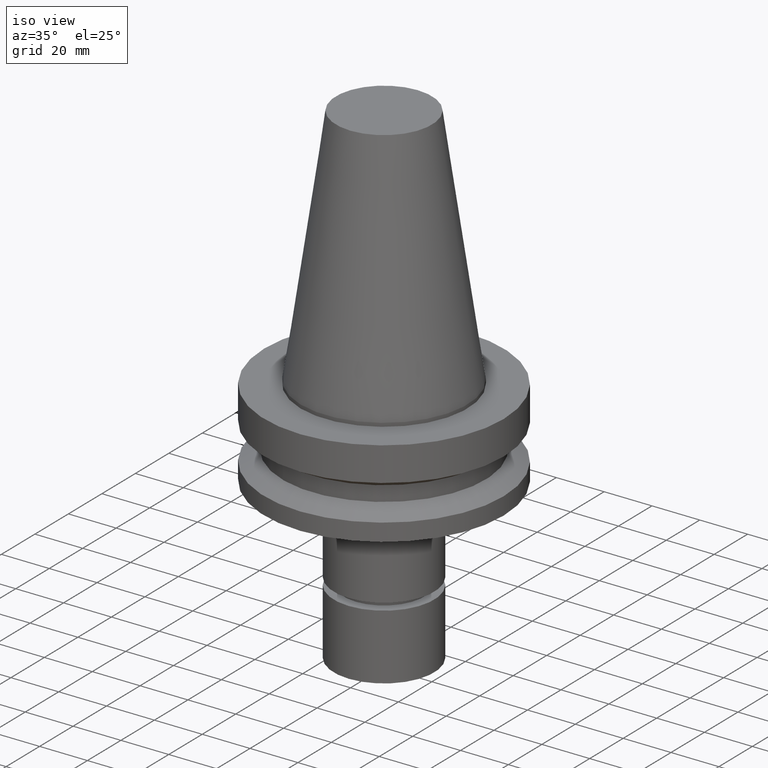
[diagram: clean part render]
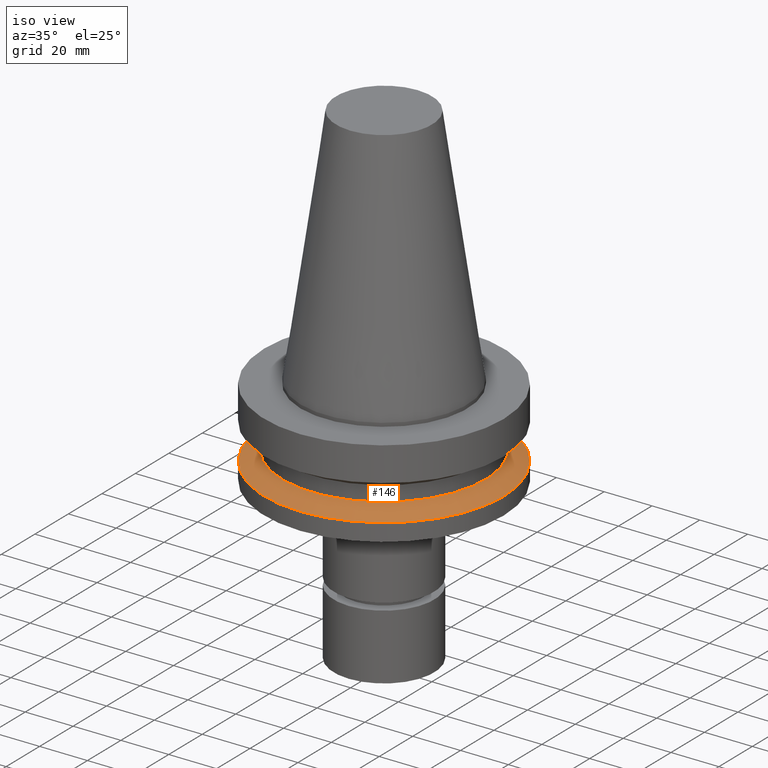
[diagram: same view with one face highlighted and labeled with its STEP entity id]
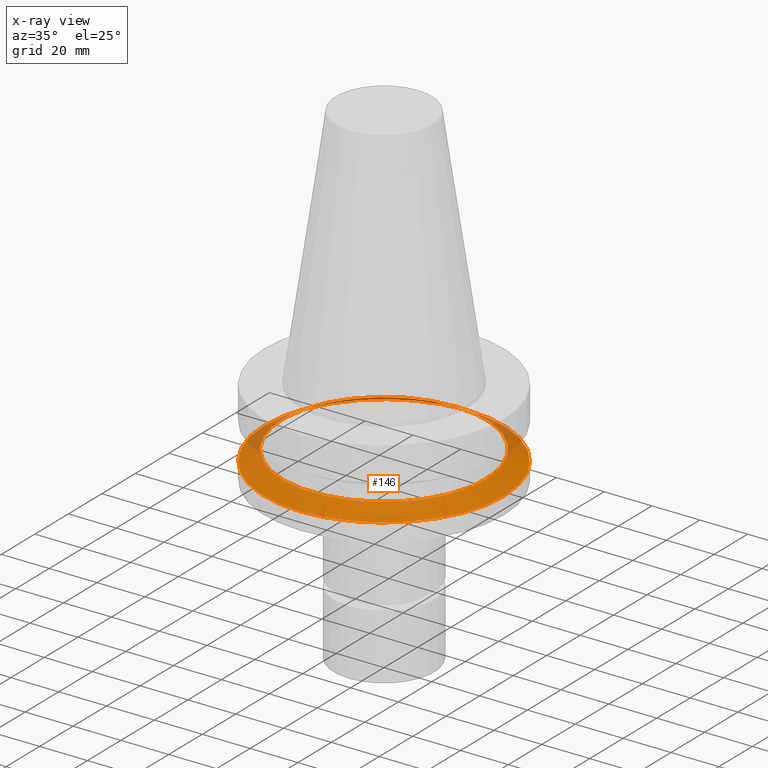
[diagram: x-ray of the same camera — body ghosted, the highlighted face saturated]
A machine part, iso view. The second image highlights one B-rep face of the part: STEP entity #146.
The next image is the same camera in x-ray: the body ghosted, the highlighted face saturated — about 12% of this face is hidden behind the body in this view.
In plain terms, the highlighted conical surface has half-angle 60 deg.
Its self-contained STEP definition (entity closure, byte-faithful):
#81=EDGE_CURVE('Unnamed[1]',#211,#211,#212,.T.);
#143=EDGE_CURVE('Unnamed[1]',#304,#304,#305,.T.);
#146=ADVANCED_FACE('Unnamed[1]',(#308,#309),#310,.T.);
#211=VERTEX_POINT('',#389);
#212=CIRCLE('',#390,50.0);
#304=VERTEX_POINT('',#507);
#305=CIRCLE('',#508,42.5);
#308=FACE_BOUND('',#512,.T.);
#309=FACE_BOUND('',#513,.T.);
#310=CONICAL_SURFACE('',#514,46.25,1.04719755108882);
#389=CARTESIAN_POINT('',(1.87983283669119E-015,50.0,-30.7000000000001));
#390=AXIS2_PLACEMENT_3D('',#592,#593,#594);
#507=CARTESIAN_POINT('',(1.61468902694397E-015,42.5,-26.3698729800001));
#508=AXIS2_PLACEMENT_3D('',#692,#693,#694);
#512=EDGE_LOOP('',(#696));
#513=EDGE_LOOP('',(#697));
#514=AXIS2_PLACEMENT_3D('',#698,#699,#700);
#592=CARTESIAN_POINT('',(1.87983283669119E-015,1.29918495814283E-014,-30.7000000000001));
#593=DIRECTION('',(-6.12323399573677E-017,1.40684069939013E-019,1.0));
#594=DIRECTION('',(-4.81853831597193E-033,1.0,-1.40684069939013E-019));
#692=CARTESIAN_POINT('',(1.61468902694397E-015,1.29924587613209E-014,-26.3698729800001));
#693=DIRECTION('',(-6.12323399573677E-017,1.40684069939023E-019,1.0));
#694=DIRECTION('',(-4.81853831597193E-033,1.0,-1.40684069939023E-019));
#696=ORIENTED_EDGE('',*,*,#143,.F.);
#697=ORIENTED_EDGE('',*,*,#81,.T.);
#698=CARTESIAN_POINT('',(1.74726093181758E-015,1.29921541713746E-014,-28.5349364900001));
#699=DIRECTION('',(6.12323399573677E-017,-1.40684069939026E-019,-1.0));
#700=DIRECTION('',(-4.81853831597193E-033,1.0,-1.40684069939026E-019));